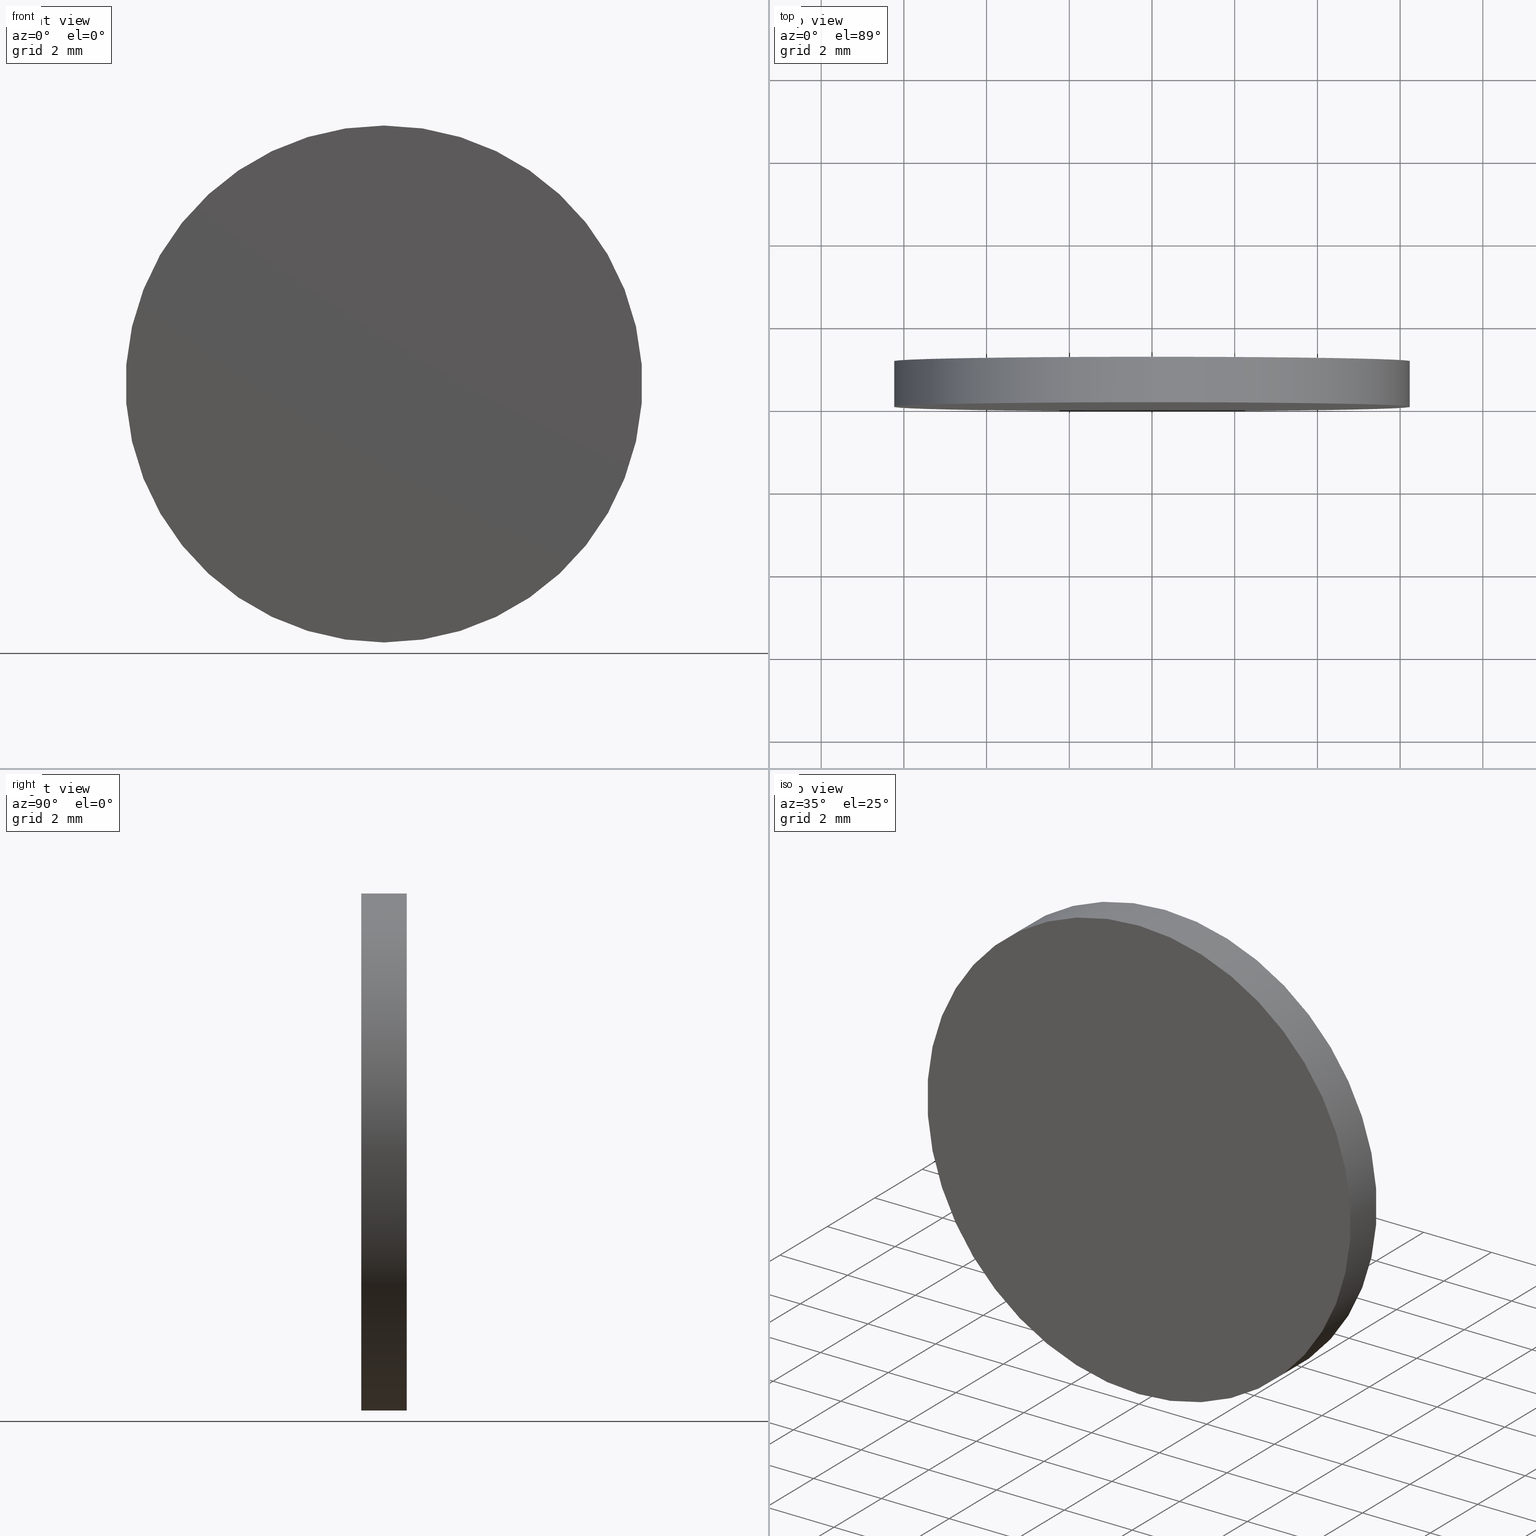
[diagram: canonical four-view strip — front | top / right | iso, engineering-drawing reading convention]
A machine part, canonical four-view strip (front | top / right | iso — engineering-drawing reading convention). The complete STEP part file that produces these views, byte-faithful:
ISO-10303-21;
HEADER;
FILE_DESCRIPTION (( 'STEP AP214' ),
    '1' );
FILE_NAME ('258500.STEP',
    '2019-08-06T08:38:11',
    ( 'user' ),
    ( '΢���й�' ),
    'SwSTEP 2.0',
    'SolidWorks 2016',
    '' );
FILE_SCHEMA (( 'AUTOMOTIVE_DESIGN' ));
ENDSEC;

DATA;
#1 = PRODUCT_DEFINITION ( 'δ֪', '', #136, #79 ) ;
#2 = CIRCLE ( 'NONE', #123, 6.250000000000000000 ) ;
#3 = ADVANCED_FACE ( 'NONE', ( #134 ), #137, .T. ) ;
#4 = APPLICATION_CONTEXT ( 'automotive_design' ) ;
#5 = CARTESIAN_POINT ( 'NONE',  ( 0.0000000000000000000, 0.0000000000000000000, 0.0000000000000000000 ) ) ;
#6 = ORIENTED_EDGE ( 'NONE', *, *, #95, .F. ) ;
#7 = AXIS2_PLACEMENT_3D ( 'NONE', #68, #76, #43 ) ;
#8 = CARTESIAN_POINT ( 'NONE',  ( 0.0000000000000000000, 0.0000000000000000000, 0.0000000000000000000 ) ) ;
#9 = ORIENTED_EDGE ( 'NONE', *, *, #71, .F. ) ;
#10 = ORIENTED_EDGE ( 'NONE', *, *, #95, .T. ) ;
#11 = CIRCLE ( 'NONE', #108, 6.250000000000000000 ) ;
#12 = APPLICATION_PROTOCOL_DEFINITION ( 'draft international standard', 'automotive_design', 1998, #67 ) ;
#13 = CARTESIAN_POINT ( 'NONE',  ( 0.0000000000000000000, 1.100000000000000100, 0.0000000000000000000 ) ) ;
#14 = PLANE ( 'NONE',  #16 ) ;
#15 = CARTESIAN_POINT ( 'NONE',  ( 7.654042494670957600E-016, 0.0000000000000000000, 6.250000000000000000 ) ) ;
#16 = AXIS2_PLACEMENT_3D ( 'NONE', #103, #80, #63 ) ;
#17 = EDGE_LOOP ( 'NONE', ( #113, #49 ) ) ;
#18 = DIRECTION ( 'NONE',  ( -0.0000000000000000000, -1.000000000000000000, -0.0000000000000000000 ) ) ;
#19 = CARTESIAN_POINT ( 'NONE',  ( 0.0000000000000000000, 1.100000000000000100, 0.0000000000000000000 ) ) ;
#20 = DIRECTION ( 'NONE',  ( 0.0000000000000000000, 0.0000000000000000000, 1.000000000000000000 ) ) ;
#21 = AXIS2_PLACEMENT_3D ( 'NONE', #13, #128, #139 ) ;
#22 = EDGE_LOOP ( 'NONE', ( #121, #9, #37, #10 ) ) ;
#23 = MANIFOLD_SOLID_BREP ( '͹̨-����1', #130 ) ;
#24 = PRESENTATION_STYLE_ASSIGNMENT (( #33 ) ) ;
#25 = PRESENTATION_STYLE_ASSIGNMENT (( #126 ) ) ;
#26 = MECHANICAL_DESIGN_GEOMETRIC_PRESENTATION_REPRESENTATION (  '', ( #35 ), #117 ) ;
#27 = COLOUR_RGB ( '',1.000000000000000000, 1.000000000000000000, 1.000000000000000000 ) ;
#28 = DIRECTION ( 'NONE',  ( 0.0000000000000000000, 0.0000000000000000000, 1.000000000000000000 ) ) ;
#29 = CARTESIAN_POINT ( 'NONE',  ( 0.0000000000000000000, 0.0000000000000000000, 0.0000000000000000000 ) ) ;
#30 = ORIENTED_EDGE ( 'NONE', *, *, #83, .T. ) ;
#31 =( GEOMETRIC_REPRESENTATION_CONTEXT ( 3 ) GLOBAL_UNCERTAINTY_ASSIGNED_CONTEXT ( ( #48 ) ) GLOBAL_UNIT_ASSIGNED_CONTEXT ( ( #52, #114, #42 ) ) REPRESENTATION_CONTEXT ( 'NONE', 'WORKASPACE' ) );
#32 = CARTESIAN_POINT ( 'NONE',  ( 0.0000000000000000000, 0.0000000000000000000, -6.250000000000000000 ) ) ;
#33 = SURFACE_STYLE_USAGE ( .BOTH. , #119 ) ;
#34 = CARTESIAN_POINT ( 'NONE',  ( 0.0000000000000000000, 1.100000000000000100, -6.250000000000000000 ) ) ;
#35 = STYLED_ITEM ( 'NONE', ( #24 ), #23 ) ;
#36 = LINE ( 'NONE', #109, #64 ) ;
#37 = ORIENTED_EDGE ( 'NONE', *, *, #74, .T. ) ;
#38 = AXIS2_PLACEMENT_3D ( 'NONE', #5, #28, #88 ) ;
#39 = CYLINDRICAL_SURFACE ( 'NONE', #86, 6.250000000000000000 ) ;
#40 = AXIS2_PLACEMENT_3D ( 'NONE', #8, #140, #93 ) ;
#41 =( NAMED_UNIT ( * ) PLANE_ANGLE_UNIT ( ) SI_UNIT ( $, .RADIAN. ) );
#42 =( NAMED_UNIT ( * ) SI_UNIT ( $, .STERADIAN. ) SOLID_ANGLE_UNIT ( ) );
#43 = DIRECTION ( 'NONE',  ( 0.0000000000000000000, -0.0000000000000000000, 1.000000000000000000 ) ) ;
#44 = DIRECTION ( 'NONE',  ( 0.0000000000000000000, 1.000000000000000000, 0.0000000000000000000 ) ) ;
#45 = FILL_AREA_STYLE ('',( #102 ) ) ;
#46 =( LENGTH_UNIT ( ) NAMED_UNIT ( * ) SI_UNIT ( .MILLI., .METRE. ) );
#47 = MECHANICAL_DESIGN_GEOMETRIC_PRESENTATION_REPRESENTATION (  '', ( #132 ), #31 ) ;
#48 = UNCERTAINTY_MEASURE_WITH_UNIT (LENGTH_MEASURE( 1.000000000000000100E-005 ), #52, 'distance_accuracy_value', 'NONE');
#49 = ORIENTED_EDGE ( 'NONE', *, *, #94, .T. ) ;
#50 =( GEOMETRIC_REPRESENTATION_CONTEXT ( 3 ) GLOBAL_UNCERTAINTY_ASSIGNED_CONTEXT ( ( #101 ) ) GLOBAL_UNIT_ASSIGNED_CONTEXT ( ( #46, #41, #100 ) ) REPRESENTATION_CONTEXT ( 'NONE', 'WORKASPACE' ) );
#51 = ADVANCED_FACE ( 'NONE', ( #89 ), #39, .T. ) ;
#52 =( LENGTH_UNIT ( ) NAMED_UNIT ( * ) SI_UNIT ( .MILLI., .METRE. ) );
#53 = EDGE_LOOP ( 'NONE', ( #6, #59 ) ) ;
#54 = DIRECTION ( 'NONE',  ( -0.0000000000000000000, -1.000000000000000000, -0.0000000000000000000 ) ) ;
#55 = EDGE_LOOP ( 'NONE', ( #133, #73, #30, #62 ) ) ;
#56 = CIRCLE ( 'NONE', #78, 6.250000000000000000 ) ;
#57 = SURFACE_SIDE_STYLE ('',( #110 ) ) ;
#58 = DIRECTION ( 'NONE',  ( 0.0000000000000000000, 0.0000000000000000000, -1.000000000000000000 ) ) ;
#59 = ORIENTED_EDGE ( 'NONE', *, *, #83, .F. ) ;
#60 = FACE_OUTER_BOUND ( 'NONE', #17, .T. ) ;
#61 = PRODUCT_DEFINITION_SHAPE ( 'NONE', 'NONE',  #1 ) ;
#62 = ORIENTED_EDGE ( 'NONE', *, *, #74, .F. ) ;
#63 = DIRECTION ( 'NONE',  ( 0.0000000000000000000, -0.0000000000000000000, 1.000000000000000000 ) ) ;
#64 = VECTOR ( 'NONE', #120, 1000.000000000000000 ) ;
#65 = APPLICATION_PROTOCOL_DEFINITION ( 'draft international standard', 'automotive_design', 1998, #4 ) ;
#66 = PRESENTATION_LAYER_ASSIGNMENT (  '', '', ( #132 ) ) ;
#67 = APPLICATION_CONTEXT ( 'automotive_design' ) ;
#68 = CARTESIAN_POINT ( 'NONE',  ( 0.0000000000000000000, 1.100000000000000100, 0.0000000000000000000 ) ) ;
#69 = CARTESIAN_POINT ( 'NONE',  ( 7.654042494670957600E-016, 1.100000000000000100, 6.250000000000000000 ) ) ;
#70 = CARTESIAN_POINT ( 'NONE',  ( 0.0000000000000000000, 1.100000000000000100, 0.0000000000000000000 ) ) ;
#71 = EDGE_CURVE ( 'NONE', #104, #84, #2, .T. ) ;
#72 = UNCERTAINTY_MEASURE_WITH_UNIT (LENGTH_MEASURE( 1.000000000000000100E-005 ), #107, 'distance_accuracy_value', 'NONE');
#73 = ORIENTED_EDGE ( 'NONE', *, *, #99, .T. ) ;
#74 = EDGE_CURVE ( 'NONE', #104, #82, #125, .T. ) ;
#75 = PRODUCT_CONTEXT ( 'NONE', #67, 'mechanical' ) ;
#76 = DIRECTION ( 'NONE',  ( 0.0000000000000000000, 1.000000000000000000, 0.0000000000000000000 ) ) ;
#77 = COLOUR_RGB ( '',1.000000000000000000, 1.000000000000000000, 1.000000000000000000 ) ;
#78 = AXIS2_PLACEMENT_3D ( 'NONE', #29, #115, #116 ) ;
#79 = PRODUCT_DEFINITION_CONTEXT ( 'detailed design', #4, 'design' ) ;
#80 = DIRECTION ( 'NONE',  ( 0.0000000000000000000, 1.000000000000000000, 0.0000000000000000000 ) ) ;
#81 = PRODUCT_RELATED_PRODUCT_CATEGORY ( 'part', '', ( #131 ) ) ;
#82 = VERTEX_POINT ( 'NONE', #32 ) ;
#83 = EDGE_CURVE ( 'NONE', #106, #82, #56, .T. ) ;
#84 = VERTEX_POINT ( 'NONE', #69 ) ;
#85 = VECTOR ( 'NONE', #54, 1000.000000000000000 ) ;
#86 = AXIS2_PLACEMENT_3D ( 'NONE', #19, #18, #58 ) ;
#87 = ADVANCED_FACE ( 'NONE', ( #60 ), #127, .T. ) ;
#88 = DIRECTION ( 'NONE',  ( 1.000000000000000000, 0.0000000000000000000, 0.0000000000000000000 ) ) ;
#89 = FACE_OUTER_BOUND ( 'NONE', #55, .T. ) ;
#90 = DIRECTION ( 'NONE',  ( 0.0000000000000000000, 0.0000000000000000000, 1.000000000000000000 ) ) ;
#91 =( NAMED_UNIT ( * ) SI_UNIT ( $, .STERADIAN. ) SOLID_ANGLE_UNIT ( ) );
#92 = FILL_AREA_STYLE_COLOUR ( '', #27 ) ;
#93 = DIRECTION ( 'NONE',  ( 0.0000000000000000000, 0.0000000000000000000, 1.000000000000000000 ) ) ;
#94 = EDGE_CURVE ( 'NONE', #84, #104, #11, .T. ) ;
#95 = EDGE_CURVE ( 'NONE', #82, #106, #97, .T. ) ;
#96 = ADVANCED_BREP_SHAPE_REPRESENTATION ( '258500', ( #23, #38 ), #50 ) ;
#97 = CIRCLE ( 'NONE', #40, 6.250000000000000000 ) ;
#98 = ADVANCED_FACE ( 'NONE', ( #122 ), #14, .F. ) ;
#99 = EDGE_CURVE ( 'NONE', #84, #106, #36, .T. ) ;
#100 =( NAMED_UNIT ( * ) SI_UNIT ( $, .STERADIAN. ) SOLID_ANGLE_UNIT ( ) );
#101 = UNCERTAINTY_MEASURE_WITH_UNIT (LENGTH_MEASURE( 1.000000000000000100E-005 ), #46, 'distance_accuracy_value', 'NONE');
#102 = FILL_AREA_STYLE_COLOUR ( '', #77 ) ;
#103 = CARTESIAN_POINT ( 'NONE',  ( 0.0000000000000000000, 0.0000000000000000000, 0.0000000000000000000 ) ) ;
#104 = VERTEX_POINT ( 'NONE', #34 ) ;
#105 = CARTESIAN_POINT ( 'NONE',  ( 0.0000000000000000000, 1.100000000000000100, 0.0000000000000000000 ) ) ;
#106 = VERTEX_POINT ( 'NONE', #15 ) ;
#107 =( LENGTH_UNIT ( ) NAMED_UNIT ( * ) SI_UNIT ( .MILLI., .METRE. ) );
#108 = AXIS2_PLACEMENT_3D ( 'NONE', #70, #129, #20 ) ;
#109 = CARTESIAN_POINT ( 'NONE',  ( 7.654042494670957600E-016, 1.100000000000000100, 6.250000000000000000 ) ) ;
#110 = SURFACE_STYLE_FILL_AREA ( #135 ) ;
#111 = SURFACE_STYLE_FILL_AREA ( #45 ) ;
#112 = PRESENTATION_LAYER_ASSIGNMENT (  '', '', ( #35 ) ) ;
#113 = ORIENTED_EDGE ( 'NONE', *, *, #71, .T. ) ;
#114 =( NAMED_UNIT ( * ) PLANE_ANGLE_UNIT ( ) SI_UNIT ( $, .RADIAN. ) );
#115 = DIRECTION ( 'NONE',  ( 0.0000000000000000000, 1.000000000000000000, 0.0000000000000000000 ) ) ;
#116 = DIRECTION ( 'NONE',  ( 0.0000000000000000000, 0.0000000000000000000, 1.000000000000000000 ) ) ;
#117 =( GEOMETRIC_REPRESENTATION_CONTEXT ( 3 ) GLOBAL_UNCERTAINTY_ASSIGNED_CONTEXT ( ( #72 ) ) GLOBAL_UNIT_ASSIGNED_CONTEXT ( ( #107, #138, #91 ) ) REPRESENTATION_CONTEXT ( 'NONE', 'WORKASPACE' ) );
#118 = CARTESIAN_POINT ( 'NONE',  ( 0.0000000000000000000, 1.100000000000000100, -6.250000000000000000 ) ) ;
#119 = SURFACE_SIDE_STYLE ('',( #111 ) ) ;
#120 = DIRECTION ( 'NONE',  ( -0.0000000000000000000, -1.000000000000000000, -0.0000000000000000000 ) ) ;
#121 = ORIENTED_EDGE ( 'NONE', *, *, #99, .F. ) ;
#122 = FACE_OUTER_BOUND ( 'NONE', #53, .T. ) ;
#123 = AXIS2_PLACEMENT_3D ( 'NONE', #105, #44, #90 ) ;
#124 = SHAPE_DEFINITION_REPRESENTATION ( #61, #96 ) ;
#125 = LINE ( 'NONE', #118, #85 ) ;
#126 = SURFACE_STYLE_USAGE ( .BOTH. , #57 ) ;
#127 = PLANE ( 'NONE',  #7 ) ;
#128 = DIRECTION ( 'NONE',  ( -0.0000000000000000000, -1.000000000000000000, -0.0000000000000000000 ) ) ;
#129 = DIRECTION ( 'NONE',  ( 0.0000000000000000000, 1.000000000000000000, 0.0000000000000000000 ) ) ;
#130 = CLOSED_SHELL ( 'NONE', ( #51, #3, #87, #98 ) ) ;
#131 = PRODUCT ( '258500', '258500', '', ( #75 ) ) ;
#132 = STYLED_ITEM ( 'NONE', ( #25 ), #96 ) ;
#133 = ORIENTED_EDGE ( 'NONE', *, *, #94, .F. ) ;
#134 = FACE_OUTER_BOUND ( 'NONE', #22, .T. ) ;
#135 = FILL_AREA_STYLE ('',( #92 ) ) ;
#136 = PRODUCT_DEFINITION_FORMATION_WITH_SPECIFIED_SOURCE ( '�κ�', '', #131, .NOT_KNOWN. ) ;
#137 = CYLINDRICAL_SURFACE ( 'NONE', #21, 6.250000000000000000 ) ;
#138 =( NAMED_UNIT ( * ) PLANE_ANGLE_UNIT ( ) SI_UNIT ( $, .RADIAN. ) );
#139 = DIRECTION ( 'NONE',  ( 0.0000000000000000000, 0.0000000000000000000, -1.000000000000000000 ) ) ;
#140 = DIRECTION ( 'NONE',  ( 0.0000000000000000000, 1.000000000000000000, 0.0000000000000000000 ) ) ;
ENDSEC;
END-ISO-10303-21;
